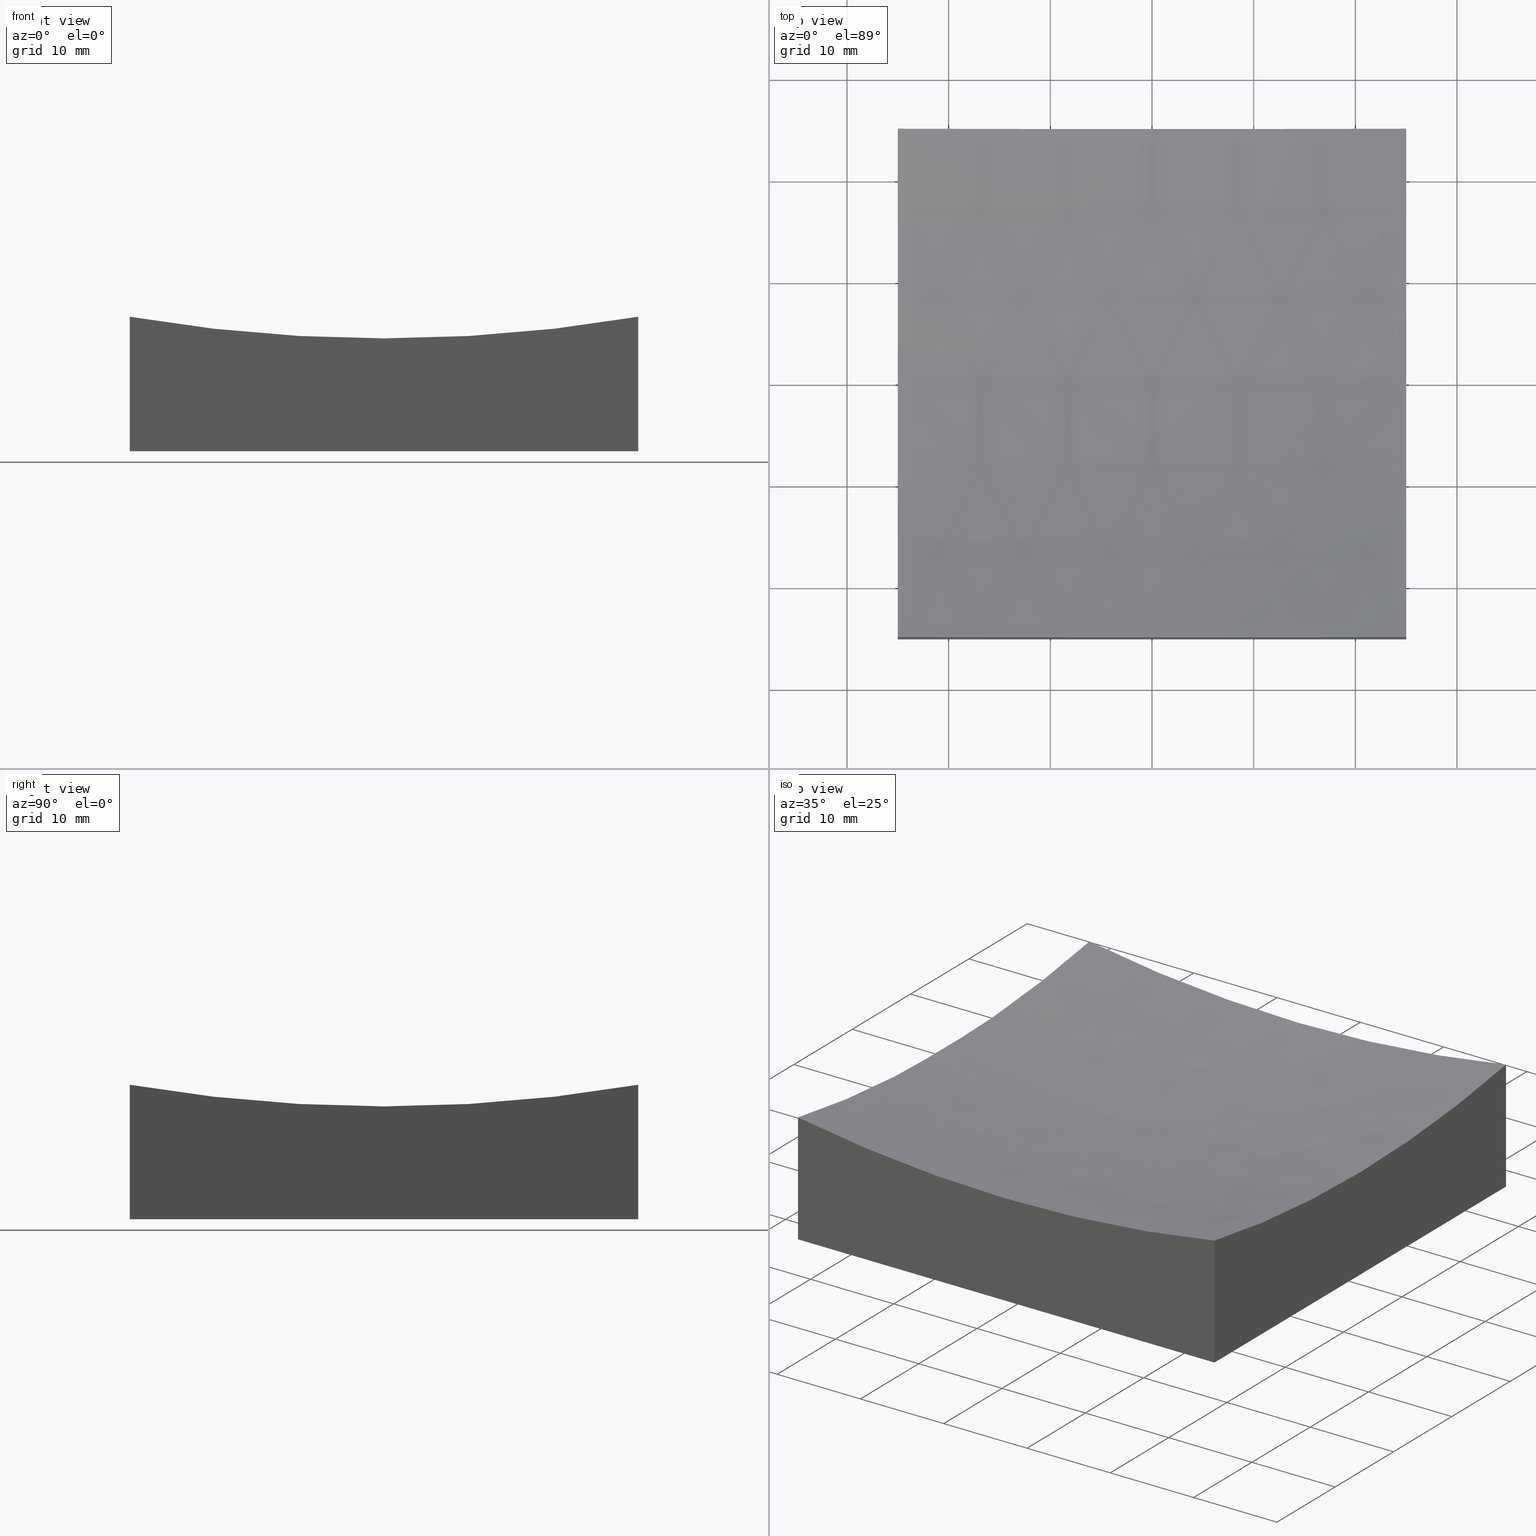
[diagram: canonical four-view strip — front | top / right | iso, engineering-drawing reading convention]
A machine part, canonical four-view strip (front | top / right | iso — engineering-drawing reading convention). The complete STEP part file that produces these views, byte-faithful:
ISO-10303-21;
HEADER;
FILE_DESCRIPTION (( 'STEP AP214' ),
    '1' );
FILE_NAME ('270051.STEP',
    '2020-06-08T03:27:33',
    ( '' ),
    ( '' ),
    'SwSTEP 2.0',
    'SolidWorks 2019',
    '' );
FILE_SCHEMA (( 'AUTOMOTIVE_DESIGN' ));
ENDSEC;

DATA;
#1 = DIRECTION ( 'NONE',  ( 1.000000000000000000, 0.0000000000000000000, 5.551115123125783688E-16 ) ) ;
#2 =( LENGTH_UNIT ( ) NAMED_UNIT ( * ) SI_UNIT ( .MILLI., .METRE. ) );
#3 = DIRECTION ( 'NONE',  ( 1.000000000000000000, 6.938893903907228378E-17, -0.0000000000000000000 ) ) ;
#4 =( NAMED_UNIT ( * ) PLANE_ANGLE_UNIT ( ) SI_UNIT ( $, .RADIAN. ) );
#5 = AXIS2_PLACEMENT_3D ( 'NONE', #137, #234, #117 ) ;
#6 = CARTESIAN_POINT ( 'NONE',  ( 25.00000000000000000, -25.00000000000000711, 50.00000000000000000 ) ) ;
#7 = DIRECTION ( 'NONE',  ( -7.037322847196354140E-17, 1.000000000000000000, 0.0000000000000000000 ) ) ;
#8 = DIRECTION ( 'NONE',  ( -6.938893903907228378E-17, 1.000000000000000000, 0.0000000000000000000 ) ) ;
#9 = VERTEX_POINT ( 'NONE', #13 ) ;
#10 = EDGE_CURVE ( 'NONE', #225, #231, #88, .T. ) ;
#11 = DIRECTION ( 'NONE',  ( -0.0000000000000000000, -0.0000000000000000000, -1.000000000000000000 ) ) ;
#12 = ORIENTED_EDGE ( 'NONE', *, *, #174, .F. ) ;
#13 = CARTESIAN_POINT ( 'NONE',  ( 24.99999999999999645, 24.99999999999999645, 13.22620262886753295 ) ) ;
#14 = FILL_AREA_STYLE_COLOUR ( '', #248 ) ;
#15 = ORIENTED_EDGE ( 'NONE', *, *, #142, .F. ) ;
#16 = APPLICATION_PROTOCOL_DEFINITION ( 'draft international standard', 'automotive_design', 1998, #252 ) ;
#17 = ORIENTED_EDGE ( 'NONE', *, *, #122, .T. ) ;
#18 = CIRCLE ( 'NONE', #61, 147.9019945774903704 ) ;
#19 = FILL_AREA_STYLE ('',( #143 ) ) ;
#20 = DIRECTION ( 'NONE',  ( 0.0000000000000000000, 0.0000000000000000000, 1.000000000000000000 ) ) ;
#21 = CARTESIAN_POINT ( 'NONE',  ( -25.00000000000000355, 24.99999999999999645, 50.00000000000000000 ) ) ;
#22 = CARTESIAN_POINT ( 'NONE',  ( 1.947188410644291696E-14, 0.0000000000000000000, 159.0000000000000000 ) ) ;
#23 = FACE_OUTER_BOUND ( 'NONE', #207, .T. ) ;
#24 = PLANE ( 'NONE',  #30 ) ;
#25 = FACE_OUTER_BOUND ( 'NONE', #232, .T. ) ;
#26 = DIRECTION ( 'NONE',  ( 1.000000000000000000, 6.938893903907228378E-17, -0.0000000000000000000 ) ) ;
#27 = ORIENTED_EDGE ( 'NONE', *, *, #182, .T. ) ;
#28 = LINE ( 'NONE', #186, #185 ) ;
#29 = ORIENTED_EDGE ( 'NONE', *, *, #210, .F. ) ;
#30 = AXIS2_PLACEMENT_3D ( 'NONE', #140, #26, #8 ) ;
#31 = DIRECTION ( 'NONE',  ( -0.0000000000000000000, -0.0000000000000000000, -1.000000000000000000 ) ) ;
#32 = DIRECTION ( 'NONE',  ( 1.000000000000000000, 0.0000000000000000000, 0.0000000000000000000 ) ) ;
#33 = ORIENTED_EDGE ( 'NONE', *, *, #120, .F. ) ;
#34 =( NAMED_UNIT ( * ) PLANE_ANGLE_UNIT ( ) SI_UNIT ( $, .RADIAN. ) );
#35 = ORIENTED_EDGE ( 'NONE', *, *, #133, .T. ) ;
#36 =( GEOMETRIC_REPRESENTATION_CONTEXT ( 3 ) GLOBAL_UNCERTAINTY_ASSIGNED_CONTEXT ( ( #189 ) ) GLOBAL_UNIT_ASSIGNED_CONTEXT ( ( #2, #4, #229 ) ) REPRESENTATION_CONTEXT ( 'NONE', 'WORKASPACE' ) );
#37 = SURFACE_STYLE_FILL_AREA ( #19 ) ;
#38 = APPLICATION_CONTEXT ( 'automotive_design' ) ;
#39 = CLOSED_SHELL ( 'NONE', ( #152, #242, #158, #43, #228, #199, #226 ) ) ;
#40 = PLANE ( 'NONE',  #65 ) ;
#41 = DIRECTION ( 'NONE',  ( 0.0000000000000000000, 0.0000000000000000000, 1.000000000000000000 ) ) ;
#42 = CARTESIAN_POINT ( 'NONE',  ( 24.99999999999999645, 24.99999999999999645, 0.0000000000000000000 ) ) ;
#43 = ADVANCED_FACE ( 'NONE', ( #244 ), #188, .F. ) ;
#44 = DIRECTION ( 'NONE',  ( 1.000000000000000000, 6.938893903907228378E-17, -0.0000000000000000000 ) ) ;
#45 = PRODUCT_DEFINITION_SHAPE ( 'NONE', 'NONE',  #69 ) ;
#46 = CIRCLE ( 'NONE', #94, 147.9019945774903420 ) ;
#47 = EDGE_CURVE ( 'NONE', #145, #225, #169, .T. ) ;
#48 = DIRECTION ( 'NONE',  ( 0.0000000000000000000, 1.000000000000000000, 0.0000000000000000000 ) ) ;
#49 = CIRCLE ( 'NONE', #201, 147.9019945774903704 ) ;
#50 = CARTESIAN_POINT ( 'NONE',  ( 25.00000000000000000, -25.00000000000000711, 13.22620262886753295 ) ) ;
#51 = ORIENTED_EDGE ( 'NONE', *, *, #122, .F. ) ;
#52 = CARTESIAN_POINT ( 'NONE',  ( -25.00000000000000355, 24.99999999999999645, 50.00000000000000000 ) ) ;
#53 = EDGE_CURVE ( 'NONE', #173, #107, #127, .T. ) ;
#54 = CIRCLE ( 'NONE', #179, 149.9999999999999716 ) ;
#55 = EDGE_CURVE ( 'NONE', #151, #91, #223, .T. ) ;
#56 = VERTEX_POINT ( 'NONE', #50 ) ;
#57 = ORIENTED_EDGE ( 'NONE', *, *, #142, .T. ) ;
#58 = PRESENTATION_STYLE_ASSIGNMENT (( #112 ) ) ;
#59 = CARTESIAN_POINT ( 'NONE',  ( -25.00000000000000000, -25.00000000000000711, 0.0000000000000000000 ) ) ;
#60 = CARTESIAN_POINT ( 'NONE',  ( 1.947188410644291696E-14, 24.99999999999999645, 159.0000000000000000 ) ) ;
#61 = AXIS2_PLACEMENT_3D ( 'NONE', #220, #3, #7 ) ;
#62 =( NAMED_UNIT ( * ) SI_UNIT ( $, .STERADIAN. ) SOLID_ANGLE_UNIT ( ) );
#63 = CARTESIAN_POINT ( 'NONE',  ( -25.00000000000000355, 3.061616997868396453E-15, 11.09800542250961897 ) ) ;
#64 = DIRECTION ( 'NONE',  ( 1.000000000000000000, 6.938893903907228378E-17, -0.0000000000000000000 ) ) ;
#65 = AXIS2_PLACEMENT_3D ( 'NONE', #21, #219, #177 ) ;
#66 = STYLED_ITEM ( 'NONE', ( #58 ), #103 ) ;
#67 = DIRECTION ( 'NONE',  ( -0.0000000000000000000, 1.000000000000000000, 0.0000000000000000000 ) ) ;
#68 = ORIENTED_EDGE ( 'NONE', *, *, #197, .F. ) ;
#69 = PRODUCT_DEFINITION ( 'δ֪', '', #74, #251 ) ;
#70 = ORIENTED_EDGE ( 'NONE', *, *, #182, .F. ) ;
#71 = AXIS2_PLACEMENT_3D ( 'NONE', #238, #119, #200 ) ;
#72 = SURFACE_SIDE_STYLE ('',( #128 ) ) ;
#73 = VERTEX_POINT ( 'NONE', #124 ) ;
#74 = PRODUCT_DEFINITION_FORMATION_WITH_SPECIFIED_SOURCE ( '�κ�', '', #87, .NOT_KNOWN. ) ;
#75 = CARTESIAN_POINT ( 'NONE',  ( 1.947188410644291696E-14, 0.0000000000000000000, 159.0000000000000000 ) ) ;
#76 = PRODUCT_RELATED_PRODUCT_CATEGORY ( 'part', '', ( #87 ) ) ;
#77 = LINE ( 'NONE', #162, #195 ) ;
#78 = CIRCLE ( 'NONE', #83, 147.9019945774903420 ) ;
#79 = FACE_OUTER_BOUND ( 'NONE', #183, .T. ) ;
#80 = CARTESIAN_POINT ( 'NONE',  ( 1.947188410644291696E-14, 0.0000000000000000000, 159.0000000000000000 ) ) ;
#81 = DIRECTION ( 'NONE',  ( 1.000000000000000000, 0.0000000000000000000, 5.551115123125783688E-16 ) ) ;
#82 = ORIENTED_EDGE ( 'NONE', *, *, #55, .F. ) ;
#83 = AXIS2_PLACEMENT_3D ( 'NONE', #60, #136, #41 ) ;
#84 = DIRECTION ( 'NONE',  ( 0.0000000000000000000, -1.000000000000000000, 0.0000000000000000000 ) ) ;
#85 = VECTOR ( 'NONE', #154, 1000.000000000000000 ) ;
#86 = DIRECTION ( 'NONE',  ( 0.0000000000000000000, 1.000000000000000000, 0.0000000000000000000 ) ) ;
#87 = PRODUCT ( '270051', '270051', '', ( #113 ) ) ;
#88 = LINE ( 'NONE', #106, #243 ) ;
#89 =( NAMED_UNIT ( * ) SI_UNIT ( $, .STERADIAN. ) SOLID_ANGLE_UNIT ( ) );
#90 = ORIENTED_EDGE ( 'NONE', *, *, #10, .F. ) ;
#91 = VERTEX_POINT ( 'NONE', #206 ) ;
#92 = AXIS2_PLACEMENT_3D ( 'NONE', #181, #221, #118 ) ;
#93 = SURFACE_SIDE_STYLE ('',( #37 ) ) ;
#94 = AXIS2_PLACEMENT_3D ( 'NONE', #139, #48, #237 ) ;
#95 = EDGE_CURVE ( 'NONE', #9, #151, #28, .T. ) ;
#96 = FACE_OUTER_BOUND ( 'NONE', #245, .T. ) ;
#97 = DIRECTION ( 'NONE',  ( 1.224646799147353207E-16, 1.000000000000000000, 7.185297002079678583E-32 ) ) ;
#98 = SPHERICAL_SURFACE ( 'NONE', #205, 149.9999999999999716 ) ;
#99 = LINE ( 'NONE', #6, #114 ) ;
#100 = SPHERICAL_SURFACE ( 'NONE', #172, 149.9999999999999716 ) ;
#101 = COLOUR_RGB ( '',1.000000000000000000, 1.000000000000000000, 1.000000000000000000 ) ;
#102 = CARTESIAN_POINT ( 'NONE',  ( -25.00000000000000355, -1.734723475976809067E-15, 159.0000000000000000 ) ) ;
#103 = MANIFOLD_SOLID_BREP ( '�г�-��ת2', #39 ) ;
#104 = ORIENTED_EDGE ( 'NONE', *, *, #95, .T. ) ;
#105 = DIRECTION ( 'NONE',  ( 6.938893903907228378E-17, -1.000000000000000000, 0.0000000000000000000 ) ) ;
#106 = CARTESIAN_POINT ( 'NONE',  ( -25.00000000000000355, 24.99999999999999645, 0.0000000000000000000 ) ) ;
#107 = VERTEX_POINT ( 'NONE', #176 ) ;
#108 = EDGE_LOOP ( 'NONE', ( #68, #247, #111, #214 ) ) ;
#109 = UNCERTAINTY_MEASURE_WITH_UNIT (LENGTH_MEASURE( 1.000000000000000082E-05 ), #209, 'distance_accuracy_value', 'NONE');
#110 = ORIENTED_EDGE ( 'NONE', *, *, #174, .T. ) ;
#111 = ORIENTED_EDGE ( 'NONE', *, *, #240, .T. ) ;
#112 = SURFACE_STYLE_USAGE ( .BOTH. , #93 ) ;
#113 = PRODUCT_CONTEXT ( 'NONE', #252, 'mechanical' ) ;
#114 = VECTOR ( 'NONE', #222, 1000.000000000000000 ) ;
#115 = PLANE ( 'NONE',  #5 ) ;
#116 = DIRECTION ( 'NONE',  ( 1.000000000000000000, 0.0000000000000000000, 0.0000000000000000000 ) ) ;
#117 = DIRECTION ( 'NONE',  ( -6.938893903907228378E-17, 1.000000000000000000, 0.0000000000000000000 ) ) ;
#118 = DIRECTION ( 'NONE',  ( -7.037322847196354140E-17, 1.000000000000000000, 0.0000000000000000000 ) ) ;
#119 = DIRECTION ( 'NONE',  ( 0.0000000000000000000, 0.0000000000000000000, -1.000000000000000000 ) ) ;
#120 = EDGE_CURVE ( 'NONE', #225, #151, #138, .T. ) ;
#121 = MECHANICAL_DESIGN_GEOMETRIC_PRESENTATION_REPRESENTATION (  '', ( #135 ), #153 ) ;
#122 = EDGE_CURVE ( 'NONE', #173, #164, #54, .T. ) ;
#123 = AXIS2_PLACEMENT_3D ( 'NONE', #102, #44, #239 ) ;
#124 = CARTESIAN_POINT ( 'NONE',  ( -25.00000000000000000, -25.00000000000000711, 13.22620262886753295 ) ) ;
#125 = ORIENTED_EDGE ( 'NONE', *, *, #184, .F. ) ;
#126 = ORIENTED_EDGE ( 'NONE', *, *, #133, .F. ) ;
#127 = CIRCLE ( 'NONE', #193, 149.9999999999999716 ) ;
#128 = SURFACE_STYLE_FILL_AREA ( #131 ) ;
#129 = CARTESIAN_POINT ( 'NONE',  ( 0.0000000000000000000, 0.0000000000000000000, 0.0000000000000000000 ) ) ;
#130 = ORIENTED_EDGE ( 'NONE', *, *, #53, .T. ) ;
#131 = FILL_AREA_STYLE ('',( #14 ) ) ;
#132 = ORIENTED_EDGE ( 'NONE', *, *, #240, .F. ) ;
#133 = EDGE_CURVE ( 'NONE', #9, #145, #78, .T. ) ;
#134 = FACE_OUTER_BOUND ( 'NONE', #192, .T. ) ;
#135 = STYLED_ITEM ( 'NONE', ( #246 ), #166 ) ;
#136 = DIRECTION ( 'NONE',  ( 0.0000000000000000000, 1.000000000000000000, 0.0000000000000000000 ) ) ;
#137 = CARTESIAN_POINT ( 'NONE',  ( 24.99999999999999645, 24.99999999999999645, 50.00000000000000000 ) ) ;
#138 = LINE ( 'NONE', #180, #236 ) ;
#139 = CARTESIAN_POINT ( 'NONE',  ( 1.947188410644291696E-14, -25.00000000000000711, 159.0000000000000000 ) ) ;
#140 = CARTESIAN_POINT ( 'NONE',  ( -25.00000000000000355, 24.99999999999999645, 50.00000000000000000 ) ) ;
#141 = MECHANICAL_DESIGN_GEOMETRIC_PRESENTATION_REPRESENTATION (  '', ( #66 ), #175 ) ;
#142 = EDGE_CURVE ( 'NONE', #73, #164, #18, .T. ) ;
#143 = FILL_AREA_STYLE_COLOUR ( '', #101 ) ;
#144 = EDGE_CURVE ( 'NONE', #231, #91, #77, .T. ) ;
#145 = VERTEX_POINT ( 'NONE', #155 ) ;
#146 = CARTESIAN_POINT ( 'NONE',  ( -25.00000000000000000, -25.00000000000000711, 50.00000000000000000 ) ) ;
#147 = DIRECTION ( 'NONE',  ( 6.938893903907228378E-17, -1.000000000000000000, 0.0000000000000000000 ) ) ;
#148 = PRESENTATION_LAYER_ASSIGNMENT (  '', '', ( #66 ) ) ;
#149 = SURFACE_STYLE_USAGE ( .BOTH. , #72 ) ;
#150 = EDGE_LOOP ( 'NONE', ( #171, #17, #15, #29, #27 ) ) ;
#151 = VERTEX_POINT ( 'NONE', #42 ) ;
#152 = ADVANCED_FACE ( 'NONE', ( #160 ), #100, .F. ) ;
#153 =( GEOMETRIC_REPRESENTATION_CONTEXT ( 3 ) GLOBAL_UNCERTAINTY_ASSIGNED_CONTEXT ( ( #109 ) ) GLOBAL_UNIT_ASSIGNED_CONTEXT ( ( #209, #34, #89 ) ) REPRESENTATION_CONTEXT ( 'NONE', 'WORKASPACE' ) );
#154 = DIRECTION ( 'NONE',  ( -0.0000000000000000000, -0.0000000000000000000, -1.000000000000000000 ) ) ;
#155 = CARTESIAN_POINT ( 'NONE',  ( -25.00000000000000711, 24.99999999999999645, 13.22620262886753295 ) ) ;
#156 = ORIENTED_EDGE ( 'NONE', *, *, #144, .F. ) ;
#157 = CARTESIAN_POINT ( 'NONE',  ( -25.00000000000000000, -25.00000000000000711, 50.00000000000000000 ) ) ;
#158 = ADVANCED_FACE ( 'NONE', ( #25 ), #24, .F. ) ;
#159 = CIRCLE ( 'NONE', #92, 147.9019945774903704 ) ;
#160 = FACE_OUTER_BOUND ( 'NONE', #150, .T. ) ;
#161 = PLANE ( 'NONE',  #71 ) ;
#162 = CARTESIAN_POINT ( 'NONE',  ( -25.00000000000000000, -25.00000000000000711, 0.0000000000000000000 ) ) ;
#163 = CARTESIAN_POINT ( 'NONE',  ( 1.166653389736183042E-13, 0.0000000000000000000, 9.000000000000035527 ) ) ;
#164 = VERTEX_POINT ( 'NONE', #63 ) ;
#165 = ORIENTED_EDGE ( 'NONE', *, *, #47, .F. ) ;
#166 = ADVANCED_BREP_SHAPE_REPRESENTATION ( '270051', ( #103, #187 ), #36 ) ;
#167 = DIRECTION ( 'NONE',  ( 0.0000000000000000000, 0.0000000000000000000, -1.000000000000000000 ) ) ;
#168 = AXIS2_PLACEMENT_3D ( 'NONE', #146, #86, #227 ) ;
#169 = LINE ( 'NONE', #52, #216 ) ;
#170 = ORIENTED_EDGE ( 'NONE', *, *, #120, .T. ) ;
#171 = ORIENTED_EDGE ( 'NONE', *, *, #53, .F. ) ;
#172 = AXIS2_PLACEMENT_3D ( 'NONE', #80, #67, #81 ) ;
#173 = VERTEX_POINT ( 'NONE', #163 ) ;
#174 = EDGE_CURVE ( 'NONE', #164, #145, #230, .T. ) ;
#175 =( GEOMETRIC_REPRESENTATION_CONTEXT ( 3 ) GLOBAL_UNCERTAINTY_ASSIGNED_CONTEXT ( ( #211 ) ) GLOBAL_UNIT_ASSIGNED_CONTEXT ( ( #215, #250, #62 ) ) REPRESENTATION_CONTEXT ( 'NONE', 'WORKASPACE' ) );
#176 = CARTESIAN_POINT ( 'NONE',  ( 24.99999999999999645, 9.629649721936179265E-32, 11.09800542250961897 ) ) ;
#177 = DIRECTION ( 'NONE',  ( 0.0000000000000000000, -0.0000000000000000000, 1.000000000000000000 ) ) ;
#178 = CARTESIAN_POINT ( 'NONE',  ( 24.99999999999999645, 1.734723475976805517E-15, 159.0000000000000000 ) ) ;
#179 = AXIS2_PLACEMENT_3D ( 'NONE', #22, #97, #218 ) ;
#180 = CARTESIAN_POINT ( 'NONE',  ( -25.00000000000000355, 24.99999999999999645, 0.0000000000000000000 ) ) ;
#181 = CARTESIAN_POINT ( 'NONE',  ( 24.99999999999999645, 1.734723475976805517E-15, 159.0000000000000000 ) ) ;
#182 = EDGE_CURVE ( 'NONE', #56, #107, #159, .T. ) ;
#183 = EDGE_LOOP ( 'NONE', ( #170, #202, #156, #90 ) ) ;
#184 = EDGE_CURVE ( 'NONE', #107, #9, #49, .T. ) ;
#185 = VECTOR ( 'NONE', #11, 1000.000000000000000 ) ;
#186 = CARTESIAN_POINT ( 'NONE',  ( 24.99999999999999645, 24.99999999999999645, 50.00000000000000000 ) ) ;
#187 = AXIS2_PLACEMENT_3D ( 'NONE', #129, #20, #32 ) ;
#188 = PLANE ( 'NONE',  #168 ) ;
#189 = UNCERTAINTY_MEASURE_WITH_UNIT (LENGTH_MEASURE( 1.000000000000000082E-05 ), #2, 'distance_accuracy_value', 'NONE');
#190 = ORIENTED_EDGE ( 'NONE', *, *, #184, .T. ) ;
#191 = ORIENTED_EDGE ( 'NONE', *, *, #197, .T. ) ;
#192 = EDGE_LOOP ( 'NONE', ( #51, #130, #190, #35, #12 ) ) ;
#193 = AXIS2_PLACEMENT_3D ( 'NONE', #208, #84, #167 ) ;
#194 = APPLICATION_PROTOCOL_DEFINITION ( 'draft international standard', 'automotive_design', 1998, #38 ) ;
#195 = VECTOR ( 'NONE', #116, 1000.000000000000000 ) ;
#196 = DIRECTION ( 'NONE',  ( -0.0000000000000000000, 1.000000000000000000, 0.0000000000000000000 ) ) ;
#197 = EDGE_CURVE ( 'NONE', #56, #91, #99, .T. ) ;
#198 = DIRECTION ( 'NONE',  ( 1.000000000000000000, 0.0000000000000000000, 0.0000000000000000000 ) ) ;
#199 = ADVANCED_FACE ( 'NONE', ( #79 ), #161, .T. ) ;
#200 = DIRECTION ( 'NONE',  ( -1.000000000000000000, 0.0000000000000000000, -0.0000000000000000000 ) ) ;
#201 = AXIS2_PLACEMENT_3D ( 'NONE', #178, #64, #203 ) ;
#202 = ORIENTED_EDGE ( 'NONE', *, *, #55, .T. ) ;
#203 = DIRECTION ( 'NONE',  ( -7.037322847196354140E-17, 1.000000000000000000, 0.0000000000000000000 ) ) ;
#204 = ORIENTED_EDGE ( 'NONE', *, *, #10, .T. ) ;
#205 = AXIS2_PLACEMENT_3D ( 'NONE', #75, #196, #1 ) ;
#206 = CARTESIAN_POINT ( 'NONE',  ( 25.00000000000000000, -25.00000000000000711, 0.0000000000000000000 ) ) ;
#207 = EDGE_LOOP ( 'NONE', ( #70, #191, #82, #249, #125 ) ) ;
#208 = CARTESIAN_POINT ( 'NONE',  ( 1.947188410644291696E-14, 0.0000000000000000000, 159.0000000000000000 ) ) ;
#209 =( LENGTH_UNIT ( ) NAMED_UNIT ( * ) SI_UNIT ( .MILLI., .METRE. ) );
#210 = EDGE_CURVE ( 'NONE', #56, #73, #46, .T. ) ;
#211 = UNCERTAINTY_MEASURE_WITH_UNIT (LENGTH_MEASURE( 1.000000000000000082E-05 ), #215, 'distance_accuracy_value', 'NONE');
#212 = SHAPE_DEFINITION_REPRESENTATION ( #45, #166 ) ;
#213 = ORIENTED_EDGE ( 'NONE', *, *, #47, .T. ) ;
#214 = ORIENTED_EDGE ( 'NONE', *, *, #144, .T. ) ;
#215 =( LENGTH_UNIT ( ) NAMED_UNIT ( * ) SI_UNIT ( .MILLI., .METRE. ) );
#216 = VECTOR ( 'NONE', #31, 1000.000000000000000 ) ;
#217 = LINE ( 'NONE', #157, #85 ) ;
#218 = DIRECTION ( 'NONE',  ( -1.000000000000000000, 1.224646799147353207E-16, 0.0000000000000000000 ) ) ;
#219 = DIRECTION ( 'NONE',  ( 0.0000000000000000000, 1.000000000000000000, 0.0000000000000000000 ) ) ;
#220 = CARTESIAN_POINT ( 'NONE',  ( -25.00000000000000355, -1.734723475976809067E-15, 159.0000000000000000 ) ) ;
#221 = DIRECTION ( 'NONE',  ( 1.000000000000000000, 6.938893903907228378E-17, -0.0000000000000000000 ) ) ;
#222 = DIRECTION ( 'NONE',  ( -0.0000000000000000000, -0.0000000000000000000, -1.000000000000000000 ) ) ;
#223 = LINE ( 'NONE', #241, #224 ) ;
#224 = VECTOR ( 'NONE', #105, 1000.000000000000000 ) ;
#225 = VERTEX_POINT ( 'NONE', #235 ) ;
#226 = ADVANCED_FACE ( 'NONE', ( #134 ), #98, .F. ) ;
#227 = DIRECTION ( 'NONE',  ( 0.0000000000000000000, -0.0000000000000000000, 1.000000000000000000 ) ) ;
#228 = ADVANCED_FACE ( 'NONE', ( #23 ), #115, .T. ) ;
#229 =( NAMED_UNIT ( * ) SI_UNIT ( $, .STERADIAN. ) SOLID_ANGLE_UNIT ( ) );
#230 = CIRCLE ( 'NONE', #123, 147.9019945774903704 ) ;
#231 = VERTEX_POINT ( 'NONE', #59 ) ;
#232 = EDGE_LOOP ( 'NONE', ( #132, #57, #110, #213, #204 ) ) ;
#233 = PRESENTATION_LAYER_ASSIGNMENT (  '', '', ( #135 ) ) ;
#234 = DIRECTION ( 'NONE',  ( 1.000000000000000000, 6.938893903907228378E-17, -0.0000000000000000000 ) ) ;
#235 = CARTESIAN_POINT ( 'NONE',  ( -25.00000000000000355, 24.99999999999999645, 0.0000000000000000000 ) ) ;
#236 = VECTOR ( 'NONE', #198, 1000.000000000000000 ) ;
#237 = DIRECTION ( 'NONE',  ( 0.0000000000000000000, 0.0000000000000000000, 1.000000000000000000 ) ) ;
#238 = CARTESIAN_POINT ( 'NONE',  ( 0.0000000000000000000, 0.0000000000000000000, 0.0000000000000000000 ) ) ;
#239 = DIRECTION ( 'NONE',  ( -7.037322847196354140E-17, 1.000000000000000000, 0.0000000000000000000 ) ) ;
#240 = EDGE_CURVE ( 'NONE', #73, #231, #217, .T. ) ;
#241 = CARTESIAN_POINT ( 'NONE',  ( 24.99999999999999645, 24.99999999999999645, 0.0000000000000000000 ) ) ;
#242 = ADVANCED_FACE ( 'NONE', ( #96 ), #40, .T. ) ;
#243 = VECTOR ( 'NONE', #147, 1000.000000000000000 ) ;
#244 = FACE_OUTER_BOUND ( 'NONE', #108, .T. ) ;
#245 = EDGE_LOOP ( 'NONE', ( #126, #104, #33, #165 ) ) ;
#246 = PRESENTATION_STYLE_ASSIGNMENT (( #149 ) ) ;
#247 = ORIENTED_EDGE ( 'NONE', *, *, #210, .T. ) ;
#248 = COLOUR_RGB ( '',1.000000000000000000, 1.000000000000000000, 1.000000000000000000 ) ;
#249 = ORIENTED_EDGE ( 'NONE', *, *, #95, .F. ) ;
#250 =( NAMED_UNIT ( * ) PLANE_ANGLE_UNIT ( ) SI_UNIT ( $, .RADIAN. ) );
#251 = PRODUCT_DEFINITION_CONTEXT ( 'detailed design', #38, 'design' ) ;
#252 = APPLICATION_CONTEXT ( 'automotive_design' ) ;
ENDSEC;
END-ISO-10303-21;
